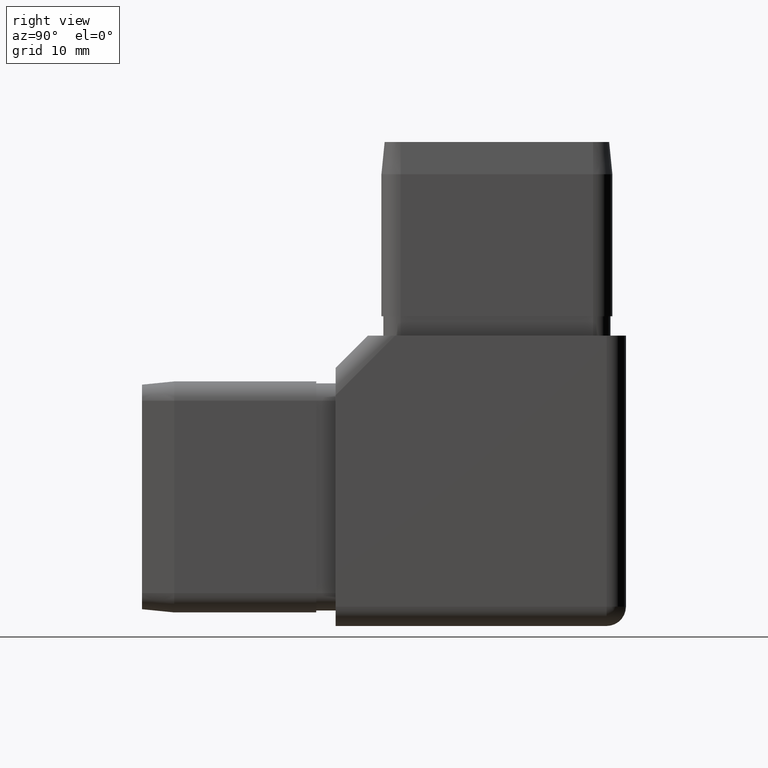
[diagram: clean part render]
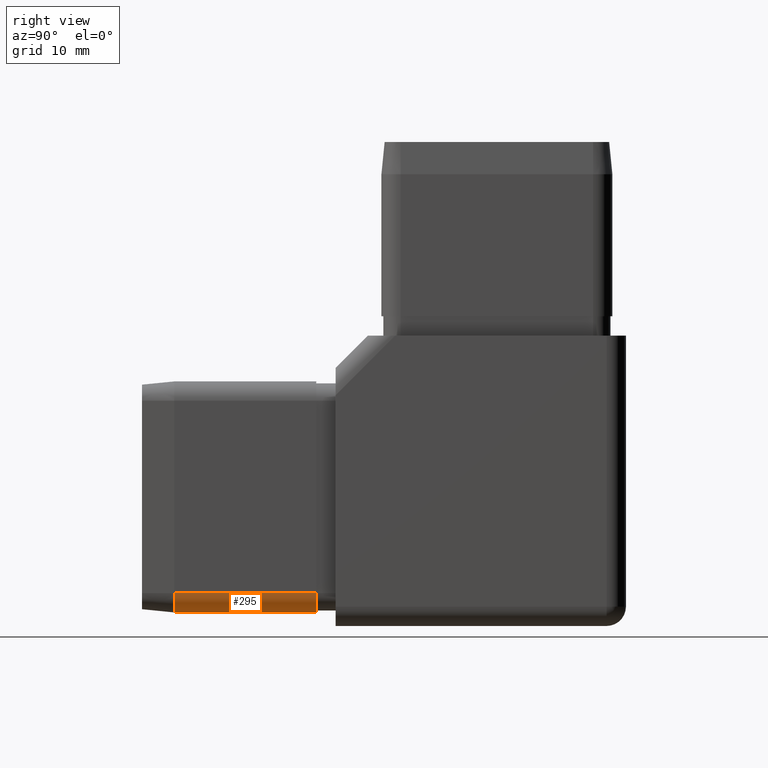
[diagram: same view with one face highlighted and labeled with its STEP entity id]
A machine part, right view. The second image highlights one B-rep face of the part: STEP entity #295.
In plain terms, the highlighted cylindrical surface (edge-blend (fillet) strip) has radius 3 mm, axis along (0, 1, 0).
Its self-contained STEP definition (entity closure, byte-faithful):
#123 = EDGE_CURVE ( 'NONE', #790, #6294, #1765, .T. ) ;
#295 = ADVANCED_FACE ( 'NONE', ( #3266 ), #14559, .T. ) ;
#493 = VERTEX_POINT ( 'NONE', #7882 ) ;
#599 = CARTESIAN_POINT ( 'NONE',  ( 17.89999999999999900, -25.49999999999999600, -17.40000000000000900 ) ) ;
#790 = VERTEX_POINT ( 'NONE', #19930 ) ;
#906 = DIRECTION ( 'NONE',  ( 0.0000000000000000000, 0.0000000000000000000, -1.000000000000000000 ) ) ;
#1531 = CARTESIAN_POINT ( 'NONE',  ( 17.90000000000000200, -52.49999999999999300, -17.40000000000002300 ) ) ;
#1706 = DIRECTION ( 'NONE',  ( 1.094764425253763600E-047, 1.000000000000000000, 4.440892098500626200E-016 ) ) ;
#1765 = CIRCLE ( 'NONE', #4002, 2.999999999999995600 ) ;
#3266 = FACE_OUTER_BOUND ( 'NONE', #20763, .T. ) ;
#3526 = AXIS2_PLACEMENT_3D ( 'NONE', #12549, #6969, #8983 ) ;
#4002 = AXIS2_PLACEMENT_3D ( 'NONE', #18062, #21631, #4875 ) ;
#4407 = LINE ( 'NONE', #17411, #19223 ) ;
#4628 = LINE ( 'NONE', #1531, #22405 ) ;
#4875 = DIRECTION ( 'NONE',  ( 0.0000000000000000000, 0.0000000000000000000, -1.000000000000000000 ) ) ;
#6294 = VERTEX_POINT ( 'NONE', #18751 ) ;
#6874 = ORIENTED_EDGE ( 'NONE', *, *, #15539, .F. ) ;
#6969 = DIRECTION ( 'NONE',  ( 0.0000000000000000000, 1.000000000000000000, 4.440892098500625700E-016 ) ) ;
#7882 = CARTESIAN_POINT ( 'NONE',  ( 14.90000000000000700, -25.49999999999999300, -20.40000000000000600 ) ) ;
#8983 = DIRECTION ( 'NONE',  ( 0.0000000000000000000, 0.0000000000000000000, 1.000000000000000000 ) ) ;
#10823 = AXIS2_PLACEMENT_3D ( 'NONE', #19563, #23394, #906 ) ;
#11799 = ORIENTED_EDGE ( 'NONE', *, *, #13068, .T. ) ;
#12097 = ORIENTED_EDGE ( 'NONE', *, *, #24293, .F. ) ;
#12549 = CARTESIAN_POINT ( 'NONE',  ( 14.90000000000000400, -52.49999999999999300, -17.40000000000002300 ) ) ;
#13068 = EDGE_CURVE ( 'NONE', #493, #16267, #20727, .T. ) ;
#14037 = ORIENTED_EDGE ( 'NONE', *, *, #123, .F. ) ;
#14559 = CYLINDRICAL_SURFACE ( 'NONE', #3526, 2.999999999999999100 ) ;
#15539 = EDGE_CURVE ( 'NONE', #493, #790, #4407, .T. ) ;
#16267 = VERTEX_POINT ( 'NONE', #599 ) ;
#17330 = DIRECTION ( 'NONE',  ( -0.0000000000000000000, -1.000000000000000000, -4.440892098500625200E-016 ) ) ;
#17411 = CARTESIAN_POINT ( 'NONE',  ( 14.90000000000000700, -52.49999999999999300, -20.40000000000002300 ) ) ;
#18062 = CARTESIAN_POINT ( 'NONE',  ( 14.90000000000000700, -47.49999999999998600, -17.40000000000002000 ) ) ;
#18751 = CARTESIAN_POINT ( 'NONE',  ( 17.89999999999999900, -47.49999999999998600, -17.40000000000002000 ) ) ;
#19223 = VECTOR ( 'NONE', #17330, 1000.000000000000000 ) ;
#19563 = CARTESIAN_POINT ( 'NONE',  ( 14.90000000000000700, -25.49999999999999300, -17.40000000000000900 ) ) ;
#19930 = CARTESIAN_POINT ( 'NONE',  ( 14.90000000000000700, -47.49999999999998600, -20.40000000000001600 ) ) ;
#20727 = CIRCLE ( 'NONE', #10823, 2.999999999999995600 ) ;
#20763 = EDGE_LOOP ( 'NONE', ( #12097, #14037, #6874, #11799 ) ) ;
#21631 = DIRECTION ( 'NONE',  ( 0.0000000000000000000, -1.000000000000000000, -4.440892098500625200E-016 ) ) ;
#22405 = VECTOR ( 'NONE', #1706, 1000.000000000000000 ) ;
#23394 = DIRECTION ( 'NONE',  ( 0.0000000000000000000, -1.000000000000000000, -4.440892098500625200E-016 ) ) ;
#24293 = EDGE_CURVE ( 'NONE', #6294, #16267, #4628, .T. ) ;